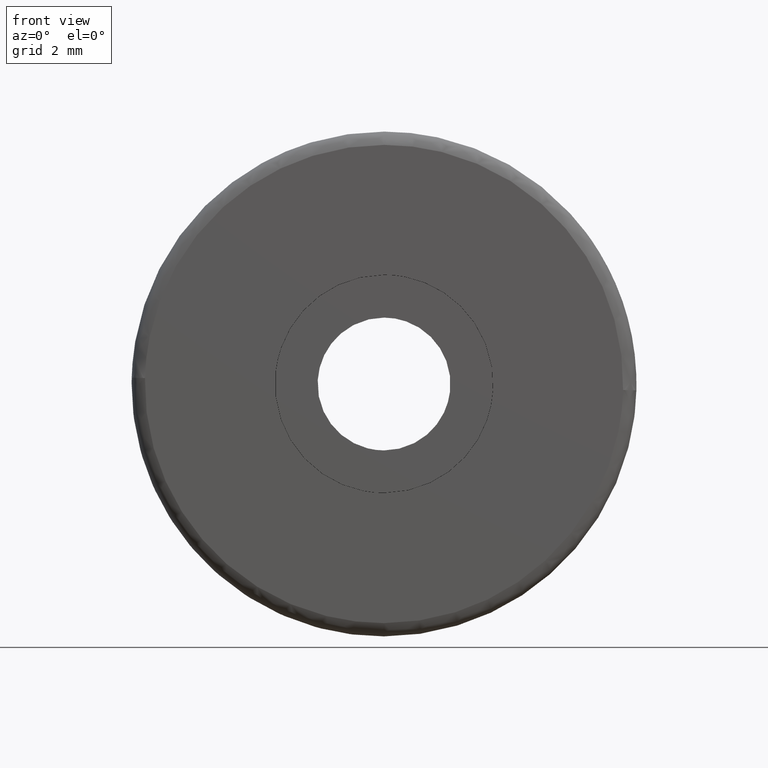
[diagram: clean part render]
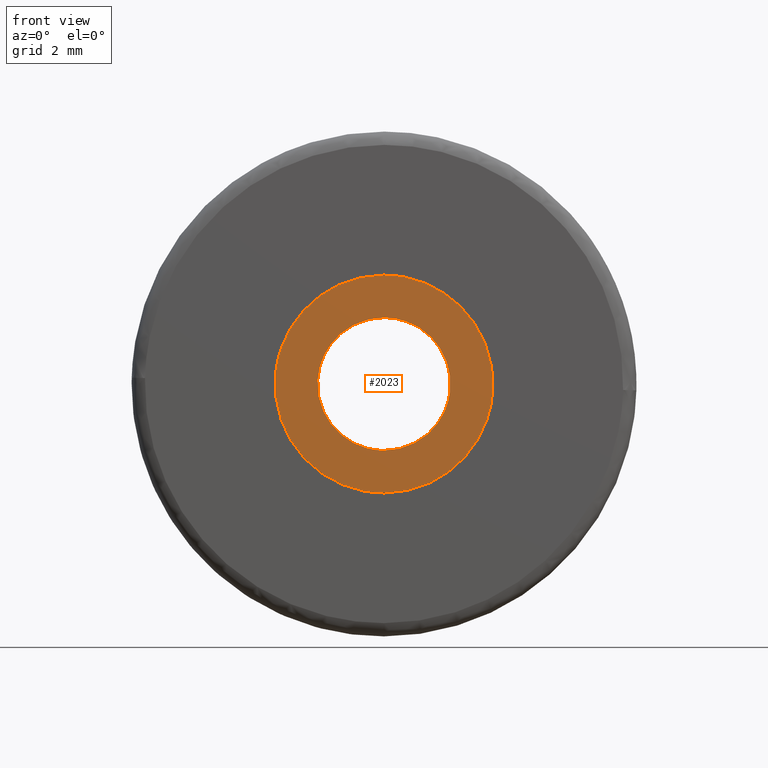
[diagram: same view with one face highlighted and labeled with its STEP entity id]
A machine part, front view. The second image highlights one B-rep face of the part: STEP entity #2023.
In plain terms, the highlighted face is a freeform B-spline surface patch.
Its self-contained STEP definition (entity closure, byte-faithful):
#654=CARTESIAN_POINT('',(4.092353059815375,4.163336E-017,-0.250292696217239));
#655=VERTEX_POINT('',#654);
#661=CARTESIAN_POINT('',(0.0,0.0,-4.100000000000001));
#662=VERTEX_POINT('',#661);
#663=CARTESIAN_POINT('',(0.0,0.0,-4.100000000000001));
#664=CARTESIAN_POINT('',(3.856900837925597,0.0,-4.100000000000001));
#665=CARTESIAN_POINT('',(4.092353059815375,4.163336E-017,-0.250292696217239));
#673=(BOUNDED_CURVE()B_SPLINE_CURVE(2,(#663,#664,#665),.UNSPECIFIED.,.F.,.U.)B_SPLINE_CURVE_WITH_KNOTS((3,3),(0.500000000000000,0.739333228539713),.UNSPECIFIED.)CURVE()GEOMETRIC_REPRESENTATION_ITEM()RATIONAL_B_SPLINE_CURVE((1.0,0.719603681295951,0.976072612400626))REPRESENTATION_ITEM(''));
#674=EDGE_CURVE('',#662,#655,#673,.T.);
#676=CARTESIAN_POINT('',(-4.071339362590548,4.259142E-017,0.483937800356752));
#677=VERTEX_POINT('',#676);
#678=CARTESIAN_POINT('',(-4.071339362590549,4.259142E-017,0.483937800356752));
#679=CARTESIAN_POINT('',(-4.100000000000001,0.0,0.242817596163801));
#680=CARTESIAN_POINT('',(-4.100000000000001,0.0,0.0));
#681=CARTESIAN_POINT('',(-4.100000000000001,0.0,-4.100000000000001));
#682=CARTESIAN_POINT('',(0.0,0.0,-4.100000000000001));
#690=(BOUNDED_CURVE()B_SPLINE_CURVE(2,(#678,#679,#680,#681,#682),.UNSPECIFIED.,.F.,.U.)B_SPLINE_CURVE_WITH_KNOTS((3,2,3),(0.229562579854545,0.250000000000000,0.500000000000000),.UNSPECIFIED.)CURVE()GEOMETRIC_REPRESENTATION_ITEM()RATIONAL_B_SPLINE_CURVE((0.956026962616588,0.976056072917418,1.0,0.707106781186547,1.0))REPRESENTATION_ITEM(''));
#691=EDGE_CURVE('',#677,#662,#690,.T.);
#735=CARTESIAN_POINT('',(0.0,0.0,4.100000000000001));
#736=VERTEX_POINT('',#735);
#737=CARTESIAN_POINT('',(0.0,0.0,4.100000000000001));
#738=CARTESIAN_POINT('',(-3.641517863816801,0.0,4.100000000000001));
#739=CARTESIAN_POINT('',(-4.071339362590549,4.259142E-017,0.483937800356752));
#747=(BOUNDED_CURVE()B_SPLINE_CURVE(2,(#737,#738,#739),.UNSPECIFIED.,.F.,.U.)B_SPLINE_CURVE_WITH_KNOTS((3,3),(0.0,0.229562579854545),.UNSPECIFIED.)CURVE()GEOMETRIC_REPRESENTATION_ITEM()RATIONAL_B_SPLINE_CURVE((1.0,0.731050708269129,0.956026962616588))REPRESENTATION_ITEM(''));
#748=EDGE_CURVE('',#736,#677,#747,.T.);
#750=CARTESIAN_POINT('',(4.092353059815375,4.163336E-017,-0.250292696217239));
#751=CARTESIAN_POINT('',(4.100000000000001,0.0,-0.125263162732201));
#752=CARTESIAN_POINT('',(4.100000000000001,0.0,0.0));
#753=CARTESIAN_POINT('',(4.100000000000001,0.0,4.100000000000001));
#754=CARTESIAN_POINT('',(0.0,0.0,4.100000000000001));
#762=(BOUNDED_CURVE()B_SPLINE_CURVE(2,(#750,#751,#752,#753,#754),.UNSPECIFIED.,.F.,.U.)B_SPLINE_CURVE_WITH_KNOTS((3,2,3),(0.739333228539713,0.750000000000000,1.0),.UNSPECIFIED.)CURVE()GEOMETRIC_REPRESENTATION_ITEM()RATIONAL_B_SPLINE_CURVE((0.976072612400626,0.987503099890597,1.0,0.707106781186547,1.0))REPRESENTATION_ITEM(''));
#763=EDGE_CURVE('',#655,#736,#762,.T.);
#1449=CARTESIAN_POINT('',(2.482523815907784,-4.567679E-016,-0.295085586653524));
#1450=VERTEX_POINT('',#1449);
#1456=CARTESIAN_POINT('',(0.0,-4.592274E-016,2.500000000000000));
#1457=VERTEX_POINT('',#1456);
#1458=CARTESIAN_POINT('',(2.482523815907784,-4.567679E-016,-0.295085586653524));
#1459=CARTESIAN_POINT('',(2.500000000000000,-4.592274E-016,-0.148060299141526));
#1460=CARTESIAN_POINT('',(2.500000000000000,-4.592274E-016,-1.501658E-016));
#1461=CARTESIAN_POINT('',(2.500000000000000,-4.592274E-016,2.500000000000000));
#1462=CARTESIAN_POINT('',(0.0,-4.592274E-016,2.500000000000000));
#1470=(BOUNDED_CURVE()B_SPLINE_CURVE(2,(#1458,#1459,#1460,#1461,#1462),.UNSPECIFIED.,.F.,.U.)B_SPLINE_CURVE_WITH_KNOTS((3,2,3),(0.229562473514061,0.250000000000000,0.500000000000000),.UNSPECIFIED.)CURVE()GEOMETRIC_REPRESENTATION_ITEM()RATIONAL_B_SPLINE_CURVE((0.956026754184783,0.976055948331793,1.0,0.707106781186548,1.0))REPRESENTATION_ITEM(''));
#1471=EDGE_CURVE('',#1450,#1457,#1470,.T.);
#1473=CARTESIAN_POINT('',(-2.495336996053267,-4.794139E-016,0.152621348860041));
#1474=VERTEX_POINT('',#1473);
#1475=CARTESIAN_POINT('',(0.0,-4.592274E-016,2.500000000000000));
#1476=CARTESIAN_POINT('',(-2.351765167220983,-4.592274E-016,2.500000000000000));
#1477=CARTESIAN_POINT('',(-2.495336996053267,-4.794139E-016,0.152621348860041));
#1485=(BOUNDED_CURVE()B_SPLINE_CURVE(2,(#1475,#1476,#1477),.UNSPECIFIED.,.F.,.U.)B_SPLINE_CURVE_WITH_KNOTS((3,3),(0.500000000000000,0.739332962238801),.UNSPECIFIED.)CURVE()GEOMETRIC_REPRESENTATION_ITEM()RATIONAL_B_SPLINE_CURVE((1.0,0.719603993286877,0.976072041666413))REPRESENTATION_ITEM(''));
#1486=EDGE_CURVE('',#1457,#1474,#1485,.T.);
#1560=CARTESIAN_POINT('',(0.0,-4.592274E-016,-2.500000000000000));
#1561=VERTEX_POINT('',#1560);
#1562=CARTESIAN_POINT('',(-2.495336996053267,-4.794139E-016,0.152621348860041));
#1563=CARTESIAN_POINT('',(-2.500000000000001,-4.592274E-016,0.076381908269435));
#1564=CARTESIAN_POINT('',(-2.500000000000000,-4.592274E-016,-1.501658E-016));
#1565=CARTESIAN_POINT('',(-2.500000000000000,-4.592274E-016,-2.500000000000000));
#1566=CARTESIAN_POINT('',(0.0,-4.592274E-016,-2.500000000000000));
#1574=(BOUNDED_CURVE()B_SPLINE_CURVE(2,(#1562,#1563,#1564,#1565,#1566),.UNSPECIFIED.,.F.,.U.)B_SPLINE_CURVE_WITH_KNOTS((3,2,3),(0.739332962238802,0.750000000000000,1.0),.UNSPECIFIED.)CURVE()GEOMETRIC_REPRESENTATION_ITEM()RATIONAL_B_SPLINE_CURVE((0.976072041666415,0.987502787899672,1.0,0.707106781186548,1.0))REPRESENTATION_ITEM(''));
#1575=EDGE_CURVE('',#1474,#1561,#1574,.T.);
#1577=CARTESIAN_POINT('',(0.0,-4.592274E-016,-2.500000000000000));
#1578=CARTESIAN_POINT('',(2.220436314857472,-4.592274E-016,-2.500000000000000));
#1579=CARTESIAN_POINT('',(2.482523815907783,-4.567679E-016,-0.295085586653524));
#1587=(BOUNDED_CURVE()B_SPLINE_CURVE(2,(#1577,#1578,#1579),.UNSPECIFIED.,.F.,.U.)B_SPLINE_CURVE_WITH_KNOTS((3,3),(0.0,0.229562473514061),.UNSPECIFIED.)CURVE()GEOMETRIC_REPRESENTATION_ITEM()RATIONAL_B_SPLINE_CURVE((1.0,0.731050832854755,0.956026754184783))REPRESENTATION_ITEM(''));
#1588=EDGE_CURVE('',#1561,#1450,#1587,.T.);
#2006=CARTESIAN_POINT('',(-4.509515721571321,-1.062281E-015,-4.509589907131077));
#2007=CARTESIAN_POINT('',(-4.509515721571321,-1.062281E-015,4.509590200385929));
#2008=CARTESIAN_POINT('',(4.509490208399170,-1.062281E-015,-4.509589907131077));
#2009=CARTESIAN_POINT('',(4.509490208399170,-1.062281E-015,4.509590200385929));
#2010=B_SPLINE_SURFACE_WITH_KNOTS('',1,1,((#2006,#2008),(#2007,#2009)),.UNSPECIFIED.,.F.,.F.,.U.,(2,2),(2,2),(0.0,9.019180107517006),(0.0,9.019005929970490),.UNSPECIFIED.);
#2011=ORIENTED_EDGE('',*,*,#748,.T.);
#2012=ORIENTED_EDGE('',*,*,#691,.T.);
#2013=ORIENTED_EDGE('',*,*,#674,.T.);
#2014=ORIENTED_EDGE('',*,*,#763,.T.);
#2015=EDGE_LOOP('',(#2011,#2012,#2013,#2014));
#2016=FACE_OUTER_BOUND('',#2015,.T.);
#2017=ORIENTED_EDGE('',*,*,#1486,.F.);
#2018=ORIENTED_EDGE('',*,*,#1471,.F.);
#2019=ORIENTED_EDGE('',*,*,#1588,.F.);
#2020=ORIENTED_EDGE('',*,*,#1575,.F.);
#2021=EDGE_LOOP('',(#2017,#2018,#2019,#2020));
#2022=FACE_BOUND('',#2021,.T.);
#2023=ADVANCED_FACE('',(#2016,#2022),#2010,.F.);